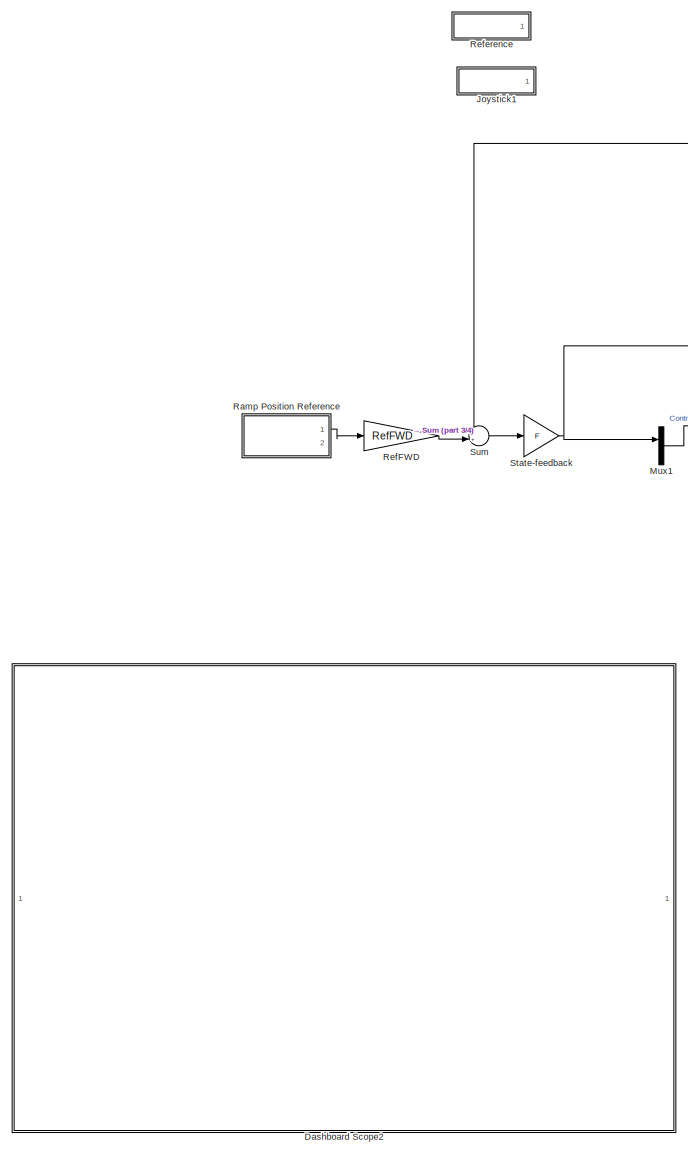
[diagram: root canvas - part 1/4, left side, full height]
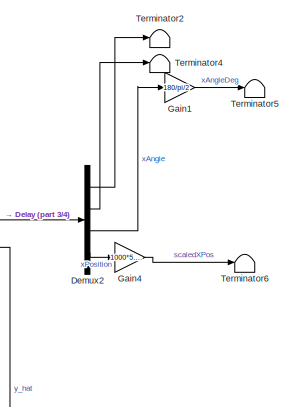
[diagram: root canvas - part 2/4, top right region]
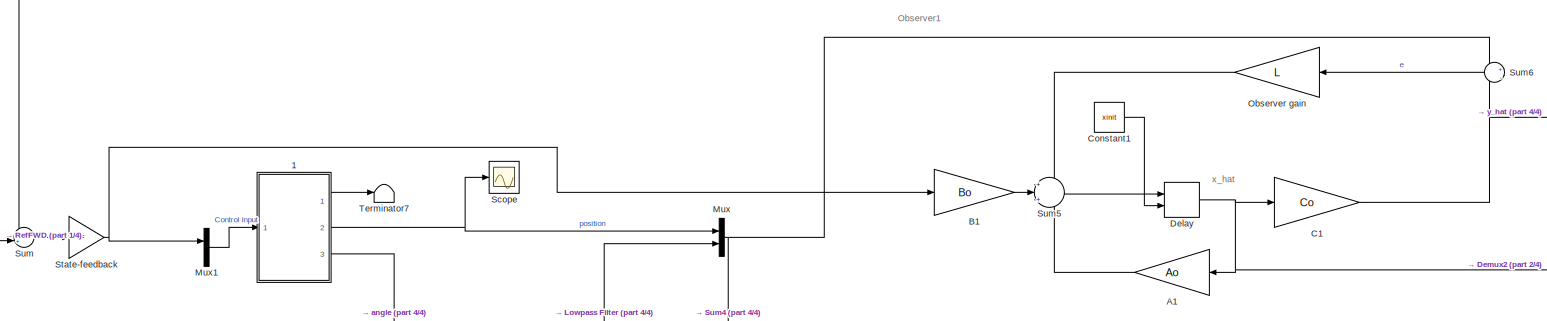
[diagram: root canvas - part 3/4, top center region]
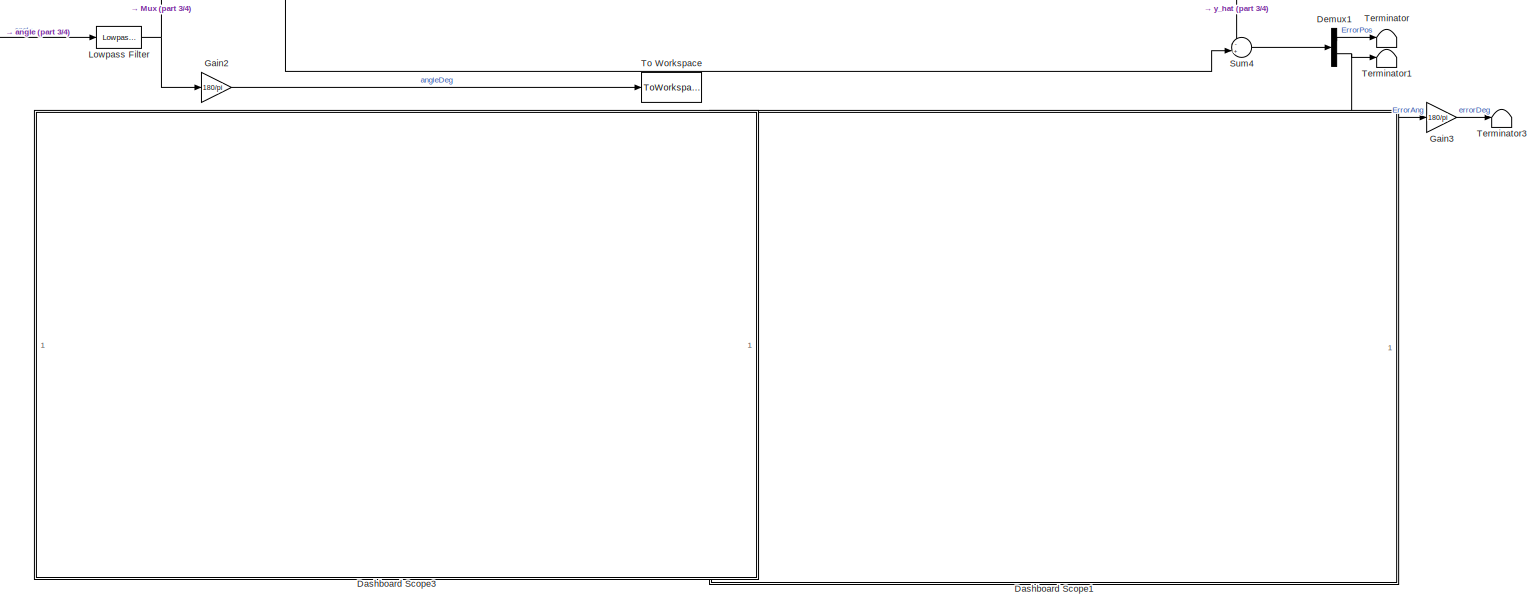
[diagram: root canvas - part 4/4, bottom right region]
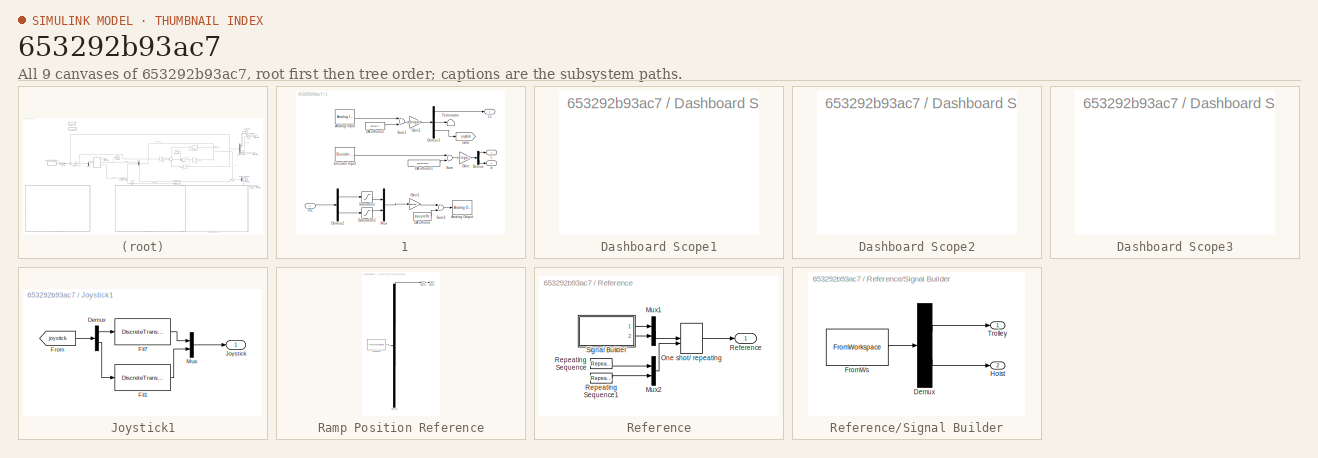
[diagram: thumbnail index - all 9 canvases of the model, root first then tree order]
MODEL slx_653292b93ac7
KIND model
CONFIG AbsTol = auto
CONFIG EnableMultiTasking = off
CONFIG FixedStep = auto
CONFIG MaxStep = auto
CONFIG MinStep = auto
CONFIG RelTol = 1e-3
CONFIG SampleTimeConstraint = Unconstrained
CONFIG Solver = VariableStepAuto
CONFIG SolverName = VariableStepAuto
CONFIG StartTime = 0.0
CONFIG StopTime = 30
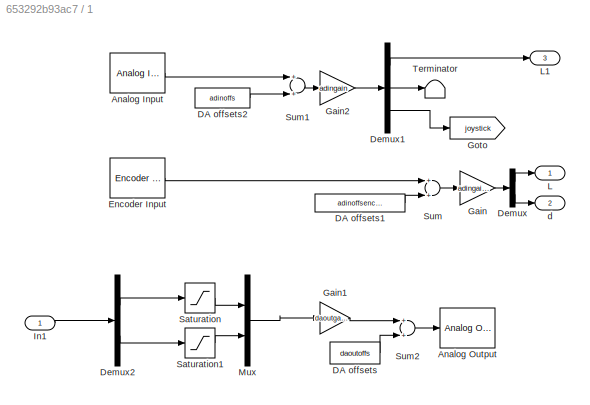
BLOCK [SubSystem]  1
  InitFcn = hwinit
  LoadFcn = hwinit
  Ports = [1, 3]
  RequestExecContextInheritance = off
  ShowPortLabels = none
  Variant = off
BLOCK [Reference]  1/Analog Input  REF=sldrtlib/Analog Input
  AttributesFormatString = Humusoft\nMF634 [auto]
  Ports = [0, 1]
  SourceBlock = sldrtlib/Analog Input
  SourceType = Simulink Desktop Real-Time Analog Input
BLOCK [Reference]  1/Analog Output  REF=sldrtlib/Analog Output
  AttributesFormatString = Humusoft\nMF634 [auto]
  Ports = [1]
  SourceBlock = sldrtlib/Analog Output
  SourceType = Simulink Desktop Real-Time Analog Output
BLOCK [Constant]  1/DA offsets
  Value = daoutoffs
BLOCK [Constant]  1/DA offsets1
  Value = adinoffsencoders
BLOCK [Constant]  1/DA offsets2
  Value = adinoffs
BLOCK [Demux]  1/Demux
  DisplayOption = bar
  Outputs = 2
  Ports = [1, 2]
BLOCK [Demux]  1/Demux1
  DisplayOption = bar
  Outputs = [1 1 2]
  Ports = [1, 3]
BLOCK [Demux]  1/Demux2
  DisplayOption = bar
  Outputs = 2
  Ports = [1, 2]
BLOCK [Reference]  1/Encoder Input  REF=sldrtlib/Encoder Input
  AttributesFormatString = Humusoft\nMF634 [auto]
  Ports = [0, 1]
  SourceBlock = sldrtlib/Encoder Input
  SourceType = Simulink Desktop Real-Time Encoder Input
BLOCK [Gain]  1/Gain
  Gain = adingainencoders
BLOCK [Gain]  1/Gain1
  Gain = daoutgain
BLOCK [Gain]  1/Gain2
  Gain = adingain
BLOCK [Goto]  1/Goto
  GotoTag = joystick
  TagVisibility = global
BLOCK [Inport]  1/In1
  IconDisplay = Port number
BLOCK [Outport]  1/L
  IconDisplay = Port number
  Tag = Position
BLOCK [Outport]  1/L1
  IconDisplay = Port number
  Port = 3
  Tag = Position
BLOCK [Mux]  1/Mux
  DisplayOption = bar
  Inputs = 2
  Ports = [2, 1]
BLOCK [Saturate]  1/Saturation
  InputPortMap = u0
  LowerLimit = -10
  Ports = [1, 1]
  UpperLimit = 10
BLOCK [Saturate]  1/Saturation1
  InputPortMap = u0
  LowerLimit = -10
  Ports = [1, 1]
  UpperLimit = 10
BLOCK [Sum]  1/Sum
  Ports = [2, 1]
BLOCK [Sum]  1/Sum1
  Ports = [2, 1]
BLOCK [Sum]  1/Sum2
  Ports = [2, 1]
BLOCK [Terminator]  1/Terminator
BLOCK [Outport]  1/d
  IconDisplay = Port number
  Port = 2
  Tag = Cable length
BLOCK [Gain] A1
  Commented = on
  Gain = Ao
  Multiplication = Matrix(K*u)
  OutDataTypeStr = Inherit: Inherit via internal rule
  ParamDataTypeStr = Inherit: Inherit via internal rule
  SaturateOnIntegerOverflow = off
BLOCK [Gain] B1
  Commented = on
  Gain = Bo
  Multiplication = Matrix(K*u)
  OutDataTypeStr = Inherit: Inherit via internal rule
  ParamDataTypeStr = Inherit: Inherit via internal rule
  SaturateOnIntegerOverflow = off
BLOCK [Gain] C1
  Commented = on
  Gain = Co
  Multiplication = Matrix(K*u)
  OutDataTypeStr = Inherit: Inherit via internal rule
  ParamDataTypeStr = Inherit: Inherit via internal rule
  SaturateOnIntegerOverflow = off
BLOCK [Constant] Constant1
  Commented = on
  Value = xinit
BLOCK [SubSystem] Dashboard Scope1
  DialogController = hmiCreateDDGDialog
  IsWebBlock = on
  MaskHideContents = on
  Ports = []
  RequestExecContextInheritance = off
  Variant = off
BLOCK [SubSystem] Dashboard Scope2
  DialogController = hmiCreateDDGDialog
  IsWebBlock = on
  MaskHideContents = on
  Ports = []
  RequestExecContextInheritance = off
  Variant = off
BLOCK [SubSystem] Dashboard Scope3
  DialogController = hmiCreateDDGDialog
  IsWebBlock = on
  MaskHideContents = on
  Ports = []
  RequestExecContextInheritance = off
  Variant = off
BLOCK [Delay] Delay
  Commented = on
  DelayLength = 1
  InitialConditionSource = Input port
  InputPortMap = u0,p4
  Ports = [2, 1]
BLOCK [Demux] Demux1
  Commented = on
  DisplayOption = bar
  Outputs = 2
  Ports = [1, 2]
BLOCK [Demux] Demux2
  Commented = on
  DisplayOption = bar
  Ports = [1, 4]
BLOCK [Gain] Gain1
  Commented = on
  Gain = 180/pi/2
  OutDataTypeStr = Inherit: Inherit via internal rule
  ParamDataTypeStr = Inherit: Inherit via internal rule
  SaturateOnIntegerOverflow = off
BLOCK [Gain] Gain2
  Commented = on
  Gain = 180/pi
  OutDataTypeStr = Inherit: Inherit via internal rule
  ParamDataTypeStr = Inherit: Inherit via internal rule
  SaturateOnIntegerOverflow = off
BLOCK [Gain] Gain3
  Commented = on
  Gain = 180/pi
  OutDataTypeStr = Inherit: Inherit via internal rule
  ParamDataTypeStr = Inherit: Inherit via internal rule
  SaturateOnIntegerOverflow = off
BLOCK [Gain] Gain4
  Commented = on
  Gain = 1000*5.75/4.75
  OutDataTypeStr = Inherit: Inherit via internal rule
  ParamDataTypeStr = Inherit: Inherit via internal rule
  SaturateOnIntegerOverflow = off
BLOCK [SubSystem] Joystick1
  Commented = on
  Ports = [0, 1]
  RequestExecContextInheritance = off
  Variant = off
BLOCK [Demux] Joystick1/Demux
  DisplayOption = bar
  Outputs = 2
  Ports = [1, 2]
BLOCK [DiscreteTransferFcn] Joystick1/Fil1
  Denominator = [1 -0.9691]
  InputPortMap = u0
  Numerator = [0.0155 0.0155]
  Ports = [1, 1]
  SampleTime = h
BLOCK [DiscreteTransferFcn] Joystick1/Fil7
  Denominator = [1 -0.9691]
  InputPortMap = u0
  Numerator = [0.0155 0.0155]
  Ports = [1, 1]
  SampleTime = h
BLOCK [From] Joystick1/From
  GotoTag = joystick
  TagVisibility = global
BLOCK [Outport] Joystick1/Joystick
  IconDisplay = Port number
BLOCK [Mux] Joystick1/Mux
  DisplayOption = bar
  Inputs = 2
  Ports = [2, 1]
BLOCK [Reference] Lowpass Filter  REF=dspfdesign/Lowpass Filter
  Commented = on
  Ports = [1, 1]
  SourceBlock = dspfdesign/Lowpass Filter
  SourceType = dsp.LowpassFilter
BLOCK [Mux] Mux
  Commented = on
  DisplayOption = bar
  Inputs = 2
  Ports = [2, 1]
BLOCK [Mux] Mux1
  DisplayOption = bar
  Inputs = 2
  Ports = [2, 1]
BLOCK [Gain] Observer gain
  Commented = on
  Gain = L
  Multiplication = Matrix(K*u)
  OutDataTypeStr = Inherit: Inherit via internal rule
  ParamDataTypeStr = Inherit: Inherit via internal rule
  SaturateOnIntegerOverflow = off
BLOCK [SubSystem] Ramp Position Reference
  ClipboardFcn = sigbuilder_block('clipboard');
  CloseFcn = sigbuilder_block('close');
  ContinueFcn = sigbuilder_block('continue');
  CopyFcn = sigbuilder_block('copy');
  DeleteFcn = sigbuilder_block('delete');
  LoadFcn = sigbuilder_block('load');
  MaskHideContents = on
  ModelCloseFcn = sigbuilder_block('modelClose');
  NameChangeFcn = sigbuilder_block('namechange');
  OpenFcn = sigbuilder_block('open',[403.5 83.25 565.5 401.25 ]);
  PauseFcn = sigbuilder_block('pause');
  Ports = [0, 2]
  PreSaveFcn = sigbuilder_block('preSave');
  RequestExecContextInheritance = off
  StartFcn = sigbuilder_block('start');
  StopFcn = sigbuilder_block('stop');
  Tag = STV Subsys
  Variant = off
BLOCK [Demux] Ramp Position Reference/Demux
  Outputs = 2
  Ports = [1, 2]
  Tag = STV Demux
BLOCK [FromWorkspace] Ramp Position Reference/FromWs
  SampleTime = 0
  Tag = STV FromWs
  VariableName = tuvar
  ZeroCross = on
BLOCK [Outport] Ramp Position Reference/Signal 1
  IconDisplay = Port number
  Port = 2
  Tag = STV Outport
BLOCK [Outport] Ramp Position Reference/Signal 2
  IconDisplay = Port number
  Tag = STV Outport
BLOCK [Gain] RefFWD
  Gain = RefFWD
  OutDataTypeStr = Inherit: Inherit via internal rule
  ParamDataTypeStr = Inherit: Inherit via internal rule
  SaturateOnIntegerOverflow = off
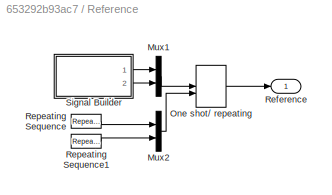
BLOCK [SubSystem] Reference
  Commented = on
  Ports = [0, 1]
  RequestExecContextInheritance = off
  Variant = off
BLOCK [Mux] Reference/Mux1
  DisplayOption = bar
  Inputs = 2
  Ports = [2, 1]
BLOCK [Mux] Reference/Mux2
  DisplayOption = bar
  Inputs = 2
  Ports = [2, 1]
BLOCK [ManualSwitch] Reference/One shot// repeating
  CurrentSetting = 0
BLOCK [Outport] Reference/Reference
  IconDisplay = Port number
BLOCK [Reference] Reference/Repeating Sequence  REF=simulink/Sources/Repeating
Sequence
  Ports = [0, 1]
  SourceBlock = simulink/Sources/Repeating\nSequence
  SourceType = Repeating table
BLOCK [Reference] Reference/Repeating Sequence1  REF=simulink/Sources/Repeating
Sequence
  Ports = [0, 1]
  SourceBlock = simulink/Sources/Repeating\nSequence
  SourceType = Repeating table
BLOCK [SubSystem] Reference/Signal Builder
  ClipboardFcn = sigbuilder_block('clipboard');
  CloseFcn = sigbuilder_block('close');
  ContinueFcn = sigbuilder_block('continue')
  CopyFcn = sigbuilder_block('copy');
  DeleteFcn = sigbuilder_block('delete');
  LoadFcn = sigbuilder_block('load');
  MaskHideContents = on
  ModelCloseFcn = sigbuilder_block('modelClose');
  NameChangeFcn = sigbuilder_block('namechange');
  OpenFcn = sigbuilder_block('open',[50.25 82.5 519.75 399.75 ]);
  PauseFcn = sigbuilder_block('pause')
  Ports = [0, 2]
  PreSaveFcn = sigbuilder_block('preSave');
  RequestExecContextInheritance = off
  StartFcn = sigbuilder_block('start');
  StopFcn = sigbuilder_block('stop');
  Tag = STV Subsys
  Variant = off
BLOCK [Demux] Reference/Signal Builder/Demux
  Outputs = 2
  Ports = [1, 2]
  Tag = STV Demux
BLOCK [FromWorkspace] Reference/Signal Builder/FromWs
  SampleTime = 0
  Tag = STV FromWs
  VariableName = tuvar
BLOCK [Outport] Reference/Signal Builder/Hoist
  IconDisplay = Port number
  Port = 2
  Tag = STV Outport
BLOCK [Outport] Reference/Signal Builder/Trolley
  IconDisplay = Port number
  Tag = STV Outport
BLOCK [Scope] Scope
  Commented = on
  NumInputPorts = 1
  Ports = [1]
  ScopeSpecificationString = Simulink.scopes.TimeScopeBlockCfg('CurrentConfiguration', extmgr.ConfigurationSet(extmgr.Configuration('Core','General UI',true),extmgr.Configuration('Core','Source UI',true),extmgr.Configuration('Sources','WiredSimulink',true),extmgr.Configuration('Visuals','Time Domain',true,'SerializedDisplays',{struct('MinYLimReal','-2.49108','MaxYLimReal','2.48989','YLabelReal','','MinYLimMag','0.00000','MaxY...<+1646ch>
BLOCK [Gain] State-feedback
  Gain = F
  Multiplication = Matrix(K*u)
  OutDataTypeStr = Inherit: Inherit via internal rule
  ParamDataTypeStr = Inherit: Inherit via internal rule
  SaturateOnIntegerOverflow = off
BLOCK [Sum] Sum
  IconShape = round
  InputSameDT = off
  Inputs = -+|
  OutDataTypeStr = Inherit: Inherit via internal rule
  Ports = [2, 1]
  SaturateOnIntegerOverflow = off
BLOCK [Sum] Sum4
  Commented = on
  IconShape = round
  InputSameDT = off
  Inputs = -+|
  OutDataTypeStr = Inherit: Inherit via internal rule
  Ports = [2, 1]
  SaturateOnIntegerOverflow = off
BLOCK [Sum] Sum5
  Commented = on
  IconShape = round
  InputSameDT = off
  Inputs = +|+|+
  OutDataTypeStr = Inherit: Inherit via internal rule
  Ports = [3, 1]
  SaturateOnIntegerOverflow = off
BLOCK [Sum] Sum6
  Commented = on
  IconShape = round
  InputSameDT = off
  Inputs = +|-
  OutDataTypeStr = Inherit: Inherit via internal rule
  Ports = [2, 1]
  SaturateOnIntegerOverflow = off
BLOCK [Terminator] Terminator
  Commented = on
BLOCK [Terminator] Terminator1
  Commented = on
BLOCK [Terminator] Terminator2
  Commented = on
BLOCK [Terminator] Terminator3
  Commented = on
BLOCK [Terminator] Terminator4
  Commented = on
BLOCK [Terminator] Terminator5
  Commented = on
BLOCK [Terminator] Terminator6
  Commented = on
BLOCK [Terminator] Terminator7
BLOCK [ToWorkspace] To Workspace
  Commented = on
  FixptAsFi = on
  MaxDataPoints = inf
  Ports = [1]
  SampleTime = -1
  Save2DSignal = 3-D array (concatenate along third dimension)
  SaveFormat = Timeseries
  VariableName = simout
ANNOTATION (root): Observer1
ANNOTATION (root): x_hat
LINE  1/Analog Input:1 ->  1/Sum1:1
LINE  1/DA offsets1:1 ->  1/Sum:2
LINE  1/DA offsets2:1 ->  1/Sum1:2
LINE  1/DA offsets:1 ->  1/Sum2:2
LINE  1/Demux1:1 ->  1/L1:1
LINE  1/Demux1:2 ->  1/Terminator:1
LINE  1/Demux1:3 ->  1/Goto:1
LINE  1/Demux2:1 ->  1/Saturation:1
LINE  1/Demux2:2 ->  1/Saturation1:1
LINE  1/Demux:1 ->  1/L:1
LINE  1/Demux:2 ->  1/d:1
LINE  1/Encoder Input:1 ->  1/Sum:1
LINE  1/Gain1:1 ->  1/Sum2:1
LINE  1/Gain2:1 ->  1/Demux1:1
LINE  1/Gain:1 ->  1/Demux:1
LINE  1/In1:1 ->  1/Demux2:1
LINE  1/Mux:1 ->  1/Gain1:1
LINE  1/Saturation1:1 ->  1/Mux:2
LINE  1/Saturation:1 ->  1/Mux:1
LINE  1/Sum1:1 ->  1/Gain2:1
LINE  1/Sum2:1 ->  1/Analog Output:1
LINE  1/Sum:1 ->  1/Gain:1
LINE  1:1 -> Terminator7:1
NET  1:2 -> Mux:1, Scope:1
LINE  1:3 -> Lowpass Filter:1
LINE A1:1 -> Sum5:3
LINE B1:1 -> Sum5:2
NET C1:1 -> Sum4:1, Sum6:2
LINE Constant1:1 -> Delay:2
NET Delay:1 -> A1:1, C1:1, Demux2:1, Sum:1
LINE Demux1:1 -> Terminator:1
NET Demux1:2 -> Gain3:1, Terminator1:1
LINE Demux2:1 -> Terminator2:1
LINE Demux2:2 -> Terminator4:1
LINE Demux2:3 -> Gain1:1
LINE Demux2:4 -> Gain4:1
LINE Gain1:1 -> Terminator5:1
LINE Gain2:1 -> To Workspace:1
LINE Gain3:1 -> Terminator3:1
LINE Gain4:1 -> Terminator6:1
LINE Joystick1/Demux:1 -> Joystick1/Fil7:1
LINE Joystick1/Demux:2 -> Joystick1/Fil1:1
LINE Joystick1/Fil1:1 -> Joystick1/Mux:2
LINE Joystick1/Fil7:1 -> Joystick1/Mux:1
LINE Joystick1/From:1 -> Joystick1/Demux:1
LINE Joystick1/Mux:1 -> Joystick1/Joystick:1
NET Lowpass Filter:1 -> Gain2:1, Mux:2
LINE Mux1:1 ->  1:1
NET Mux:1 -> Sum4:2, Sum6:1
LINE Observer gain:1 -> Sum5:1
LINE Ramp Position Reference:1 -> RefFWD:1
LINE RefFWD:1 -> Sum:2
LINE Reference/Mux1:1 -> Reference/One shot// repeating:1
LINE Reference/Mux2:1 -> Reference/One shot// repeating:2
LINE Reference/One shot// repeating:1 -> Reference/Reference:1
LINE Reference/Repeating Sequence1:1 -> Reference/Mux2:2
LINE Reference/Repeating Sequence:1 -> Reference/Mux2:1
LINE Reference/Signal Builder/Demux:1 -> Reference/Signal Builder/Trolley:1
LINE Reference/Signal Builder/Demux:2 -> Reference/Signal Builder/Hoist:1
LINE Reference/Signal Builder/FromWs:1 -> Reference/Signal Builder/Demux:1
LINE Reference/Signal Builder:1 -> Reference/Mux1:1
LINE Reference/Signal Builder:2 -> Reference/Mux1:2
NET State-feedback:1 -> B1:1, Mux1:1
LINE Sum4:1 -> Demux1:1
LINE Sum5:1 -> Delay:1
LINE Sum6:1 -> Observer gain:1
LINE Sum:1 -> State-feedback:1
note: NET lines group one-source signal fan-out (src -> all destinations, sorted); 1:1 wires keep LINE
